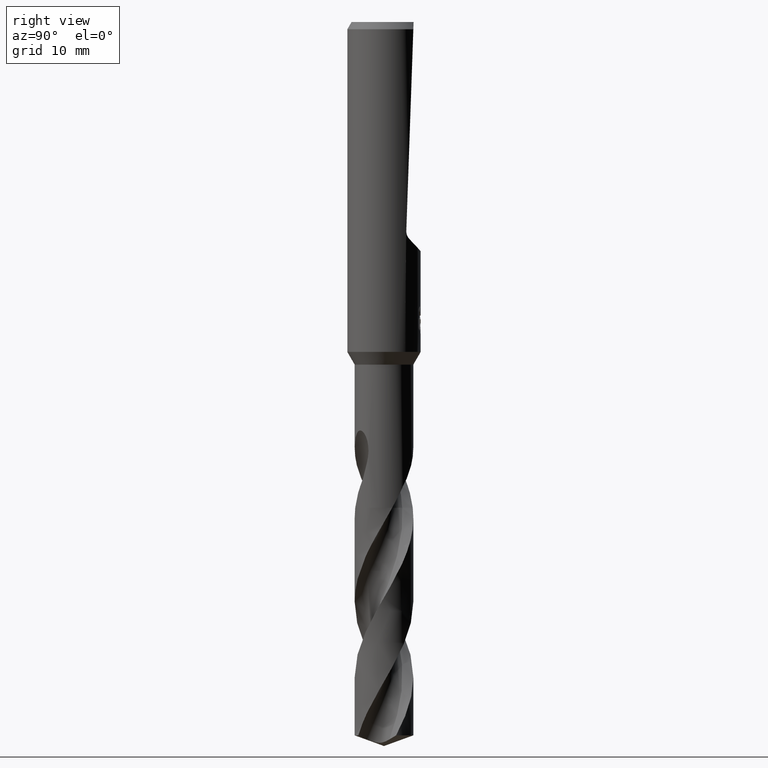
[diagram: clean part render]
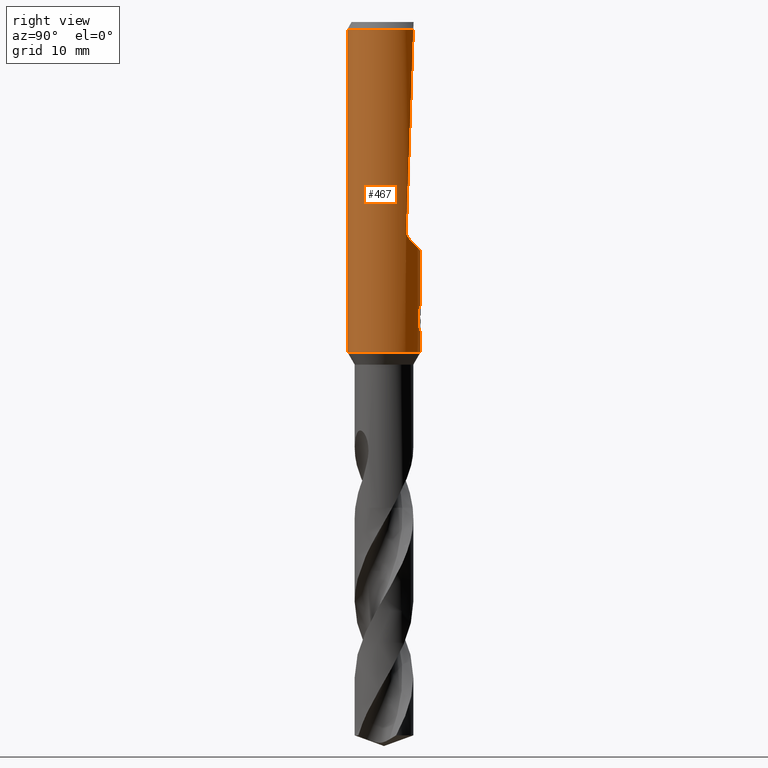
[diagram: same view with one face highlighted and labeled with its STEP entity id]
A machine part, right view. The second image highlights one B-rep face of the part: STEP entity #467.
In plain terms, the highlighted cylindrical surface (partial cylindrical patch) has radius 4 mm, axis along (-0, -0, 1).
Its self-contained STEP definition (entity closure, byte-faithful):
#317=VERTEX_POINT('',#880);
#335=VERTEX_POINT('',#899);
#357=EDGE_CURVE('',#729,#805,#924,.T.);
#365=EDGE_CURVE('',#445,#809,#934,.T.);
#367=EDGE_CURVE('',#719,#809,#936,.T.);
#369=EDGE_CURVE('',#747,#535,#938,.T.);
#383=EDGE_CURVE('',#317,#719,#955,.T.);
#397=EDGE_CURVE('',#409,#729,#970,.T.);
#399=EDGE_CURVE('',#747,#577,#972,.T.);
#409=VERTEX_POINT('',#983);
#445=VERTEX_POINT('',#1021);
#467=ADVANCED_FACE('',(#1045),#1046,.T.);
#473=EDGE_CURVE('',#589,#535,#1052,.T.);
#493=VERTEX_POINT('',#1074);
#501=EDGE_CURVE('',#679,#445,#1083,.T.);
#535=VERTEX_POINT('',#1120);
#565=EDGE_CURVE('',#577,#317,#1152,.T.);
#577=VERTEX_POINT('',#1165);
#581=VERTEX_POINT('',#1169);
#589=VERTEX_POINT('',#1178);
#615=EDGE_CURVE('',#805,#581,#1206,.T.);
#643=EDGE_CURVE('',#581,#335,#1237,.T.);
#657=EDGE_CURVE('',#493,#679,#1252,.T.);
#679=VERTEX_POINT('',#1275);
#719=VERTEX_POINT('',#1320);
#729=VERTEX_POINT('',#1330);
#747=VERTEX_POINT('',#1349);
#773=EDGE_CURVE('',#493,#409,#1379,.T.);
#779=EDGE_CURVE('',#335,#589,#1385,.T.);
#805=VERTEX_POINT('',#1416);
#809=VERTEX_POINT('',#1421);
#880=CARTESIAN_POINT('',(3.17557583065469,2.43222493691719,-22.8044492009967));
#899=CARTESIAN_POINT('',(1.33721006514658,3.76986329217263,-31.5150484364821));
#924=LINE('',#2515,#2516);
#934=LINE('',#2980,#2981);
#936=CIRCLE('',#2984,4.0);
#938=LINE('',#2987,#2988);
#955=ELLIPSE('',#3223,114.614833391376,4.0);
#970=ELLIPSE('',#3245,12.1919782934791,4.0);
#972=ELLIPSE('',#3248,5.8651167425585,4.0);
#983=CARTESIAN_POINT('',(0.29010312703583,3.98946615171554,-33.9998328990228));
#1021=CARTESIAN_POINT('',(4.89842541528951E-016,-4.0,-36.0));
#1045=FACE_OUTER_BOUND('',#3623,.T.);
#1046=CYLINDRICAL_SURFACE('',#3624,4.0);
#1052=B_SPLINE_CURVE_WITH_KNOTS('',3,(#3689,#3690,#3691,#3692,#3693,#3694,#3695,#3696,#3697,#3698,#3699,#3700,#3701,#3702,#3703,#3704,#3705,#3706,#3707,#3708,#3709,#3710,#3711,#3712,#3713,#3714,#3715),.UNSPECIFIED.,.F.,.F.,(4,2,3,2,2,2,2,2,2,2,2,2,4),(-0.543018145553855,-0.271509072776928,0.0,0.271509072776927,0.543018145553855,0.815414280910791,1.08781041626773,1.35870467547365,1.62959893467958,1.90093601549038,2.17227309630118,2.44361017711198,2.71494725792278),.UNSPECIFIED.);
#1074=CARTESIAN_POINT('',(-6.37761657961682E-016,4.0,-34.0310253601033));
#1083=CIRCLE('',#3798,4.0);
#1120=CARTESIAN_POINT('',(0.0,4.0,-32.0232688117743));
#1152=B_SPLINE_CURVE_WITH_KNOTS('',3,(#4543,#4544,#4545,#4546,#4547,#4548,#4549,#4550,#4551,#4552,#4553,#4554),.UNSPECIFIED.,.F.,.F.,(4,2,2,2,2,4),(11.3584858949333,11.6841057456814,12.0097255964295,12.2731801338981,12.5366346713666,12.8000892088352),.UNSPECIFIED.);
#1165=CARTESIAN_POINT('',(2.90106925914968,2.7538694873971,-23.6647266291147));
#1169=CARTESIAN_POINT('',(1.33721006514658,3.76986329217263,-33.2901657003257));
#1178=CARTESIAN_POINT('',(0.799431726384364,3.91929954390451,-31.000000276873));
#1206=B_SPLINE_CURVE_WITH_KNOTS('',3,(#4791,#4792,#4793,#4794,#4795,#4796,#4797,#4798,#4799,#4800),.UNSPECIFIED.,.F.,.F.,(4,2,2,2,4),(8.07922159159579,8.38940045176896,8.69957931194214,9.01038857642139,9.32119784090064),.UNSPECIFIED.);
#1237=LINE('',#5105,#5106);
#1252=LINE('',#5230,#5231);
#1275=CARTESIAN_POINT('',(0.0,4.0,-36.0));
#1320=CARTESIAN_POINT('',(2.39915011791252,3.20063723525806,-0.799999999999997));
#1330=CARTESIAN_POINT('',(0.873560781758957,3.90344611344549,-32.3198931596091));
#1349=CARTESIAN_POINT('',(-4.89842541528951E-016,4.0,-25.0010379994371));
#1379=B_SPLINE_CURVE_WITH_KNOTS('',3,(#6366,#6367,#6368,#6369,#6370,#6371,#6372,#6373,#6374,#6375,#6376,#6377,#6378,#6379,#6380,#6381),.UNSPECIFIED.,.F.,.F.,(4,2,2,2,2,2,2,4),(5.59330412183837,6.21519943861119,6.52611580040833,6.83703216220547,7.14794852400261,7.45886488579976,7.76904377517712,8.07922266455448),.UNSPECIFIED.);
#1385=B_SPLINE_CURVE_WITH_KNOTS('',3,(#6458,#6459,#6460,#6461,#6462,#6463,#6464,#6465,#6466,#6467),.UNSPECIFIED.,.F.,.F.,(4,2,2,2,4),(0.621618550720989,0.932427826081483,1.24323710144198,1.55341597198189,1.8635948425218),.UNSPECIFIED.);
#1416=CARTESIAN_POINT('',(0.873560781758956,3.90344611344549,-33.7587351791531));
#1421=CARTESIAN_POINT('',(4.89842541528951E-016,-4.0,-0.799999999999997));
#2515=CARTESIAN_POINT('',(0.873560781758957,3.90344611344549,-33.0393141693811));
#2516=VECTOR('',#7598,1.0);
#2980=CARTESIAN_POINT('',(4.89842541528951E-016,-4.0,-18.4));
#2981=VECTOR('',#7615,1.0);
#2984=AXIS2_PLACEMENT_3D('',#7616,#7617,#7618);
#2987=CARTESIAN_POINT('',(-4.89842541528951E-016,4.0,-18.4));
#2988=VECTOR('',#7619,1.0);
#3223=AXIS2_PLACEMENT_3D('',#7649,#7650,#7651);
#3245=AXIS2_PLACEMENT_3D('',#7679,#7680,#7681);
#3248=AXIS2_PLACEMENT_3D('',#7682,#7683,#7684);
#3623=EDGE_LOOP('',(#7735,#7736,#7737,#7738,#7739,#7740,#7741,#7742,#7743,#7744,#7745,#7746,#7747,#7748,#7749));
#3624=AXIS2_PLACEMENT_3D('',#7750,#7751,#7752);
#3689=CARTESIAN_POINT('',(0.665279195004375,3.9442874632428,-30.8137529884524));
#3690=CARTESIAN_POINT('',(0.72877088492158,3.9335783806135,-30.8773526603125));
#3691=CARTESIAN_POINT('',(0.783944488018489,3.92260552826083,-30.957920893425));
#3692=CARTESIAN_POINT('',(0.857267073993339,3.90723639918054,-31.134802544027));
#3693=CARTESIAN_POINT('',(0.875400981188567,3.90303383563787,-31.2311389883278));
#3694=CARTESIAN_POINT('',(0.875400981188567,3.90303383563787,-31.3216420125868));
#3695=CARTESIAN_POINT('',(0.875400981188567,3.90303383563787,-31.4121450368458));
#3696=CARTESIAN_POINT('',(0.857267073993339,3.90723639918054,-31.5084814811466));
#3697=CARTESIAN_POINT('',(0.783944488018488,3.92260552826083,-31.6853631317485));
#3698=CARTESIAN_POINT('',(0.728770884921581,3.9335783806135,-31.765931364861));
#3699=CARTESIAN_POINT('',(0.601580067811904,3.95503153411898,-31.8933384986505));
#3700=CARTESIAN_POINT('',(0.520902117238449,3.96693827151805,-31.9487071231089));
#3701=CARTESIAN_POINT('',(0.343752086871948,3.98619778335453,-32.0223037477669));
#3702=CARTESIAN_POINT('',(0.247255556938652,3.99338316413851,-32.0405166027747));
#3703=CARTESIAN_POINT('',(0.0662974670001867,4.00046977119903,-32.0405166027747));
#3704=CARTESIAN_POINT('',(-0.0299674229107091,4.00086780861984,-32.0224830783564));
#3705=CARTESIAN_POINT('',(-0.206991592502204,3.99562207288533,-31.9491870835923));
#3706=CARTESIAN_POINT('',(-0.287758268875903,3.99014940483369,-31.8939303320089));
#3707=CARTESIAN_POINT('',(-0.415384305359873,3.97889009382894,-31.7664425414649));
#3708=CARTESIAN_POINT('',(-0.470753835570468,3.9723749730993,-31.6856442592887));
#3709=CARTESIAN_POINT('',(-0.544239101864661,3.96297563900076,-31.5084730190186));
#3710=CARTESIAN_POINT('',(-0.562348199187247,3.96027328638705,-31.4120877061904));
#3711=CARTESIAN_POINT('',(-0.562348199187247,3.96027328638705,-31.2311963189832));
#3712=CARTESIAN_POINT('',(-0.544239101864661,3.96297563900076,-31.134811006155));
#3713=CARTESIAN_POINT('',(-0.470753835570468,3.9723749730993,-30.9576397658849));
#3714=CARTESIAN_POINT('',(-0.415384305359873,3.97889009382894,-30.8768414837086));
#3715=CARTESIAN_POINT('',(-0.351519173230209,3.98452434687649,-30.8130455309993));
#3798=AXIS2_PLACEMENT_3D('',#7800,#7801,#7802);
#4543=CARTESIAN_POINT('',(2.72825811350288,2.92516797228906,-23.8164335616677));
#4544=CARTESIAN_POINT('',(2.79934898450475,2.85886263617018,-23.7681571568462));
#4545=CARTESIAN_POINT('',(2.87037562163102,2.78727750482259,-23.7050263576755));
#4546=CARTESIAN_POINT('',(2.99188729278926,2.65642284716352,-23.5529400608025));
#4547=CARTESIAN_POINT('',(3.04244445655147,2.59747996728043,-23.4637614123037));
#4548=CARTESIAN_POINT('',(3.10947264435204,2.51662199005865,-23.2978526284994));
#4549=CARTESIAN_POINT('',(3.13500705494615,2.48444398927719,-23.2110167610061));
#4550=CARTESIAN_POINT('',(3.16830826056413,2.44183412236597,-23.0291690242009));
#4551=CARTESIAN_POINT('',(3.17613558772012,2.4314939293401,-22.9341467761959));
#4552=CARTESIAN_POINT('',(3.17613558772012,2.4314939293401,-22.7585104178835));
#4553=CARTESIAN_POINT('',(3.16830826056413,2.44183412236597,-22.6634881698785));
#4554=CARTESIAN_POINT('',(3.1516576577551,2.46313905582159,-22.5725643014759));
#4791=CARTESIAN_POINT('',(0.597825566619951,3.95507327263295,-33.9060822529338));
#4792=CARTESIAN_POINT('',(0.69796736707036,3.93993642812991,-33.8643738039892));
#4793=CARTESIAN_POINT('',(0.793686097648071,3.92151313976681,-33.8126197884223));
#4794=CARTESIAN_POINT('',(0.970367443122637,3.8815705522933,-33.6935130308195));
#4795=CARTESIAN_POINT('',(1.05133192391794,3.86008660197544,-33.6261512051772));
#4796=CARTESIAN_POINT('',(1.19470604884202,3.81814974811935,-33.4828594684698));
#4797=CARTESIAN_POINT('',(1.26216864117972,3.79617175021539,-33.401827240791));
#4798=CARTESIAN_POINT('',(1.38139933735972,3.75442745400946,-33.2250929426288));
#4799=CARTESIAN_POINT('',(1.43317984807825,3.73470372457547,-33.1293891903286));
#4800=CARTESIAN_POINT('',(1.47492142700079,3.7181456109429,-33.0292536952238));
#5105=CARTESIAN_POINT('',(1.33721006514658,3.76986329217263,-32.4026070684039));
#5106=VECTOR('',#7943,1.0);
#5230=CARTESIAN_POINT('',(-4.89842541528951E-016,4.0,-18.4));
#5231=VECTOR('',#7952,1.0);
#6366=CARTESIAN_POINT('',(-1.53169074080201,3.69512157777541,-33.0291469804961));
#6367=CARTESIAN_POINT('',(-1.44828662161398,3.72969396308271,-33.2292685117474));
#6368=CARTESIAN_POINT('',(-1.3235119204923,3.77766697431007,-33.4106519059977));
#6369=CARTESIAN_POINT('',(-1.10876972720289,3.84398770228913,-33.6255223555534));
#6370=CARTESIAN_POINT('',(-1.02784628500841,3.86675406900514,-33.6929304922165));
#6371=CARTESIAN_POINT('',(-0.851215741256186,3.9094356085587,-33.8121513963803));
#6372=CARTESIAN_POINT('',(-0.755506440008018,3.92931563110609,-33.8639734861066));
#6373=CARTESIAN_POINT('',(-0.55516132520436,3.96258844897707,-33.9475385932463));
#6374=CARTESIAN_POINT('',(-0.450345578096092,3.97598591776774,-33.9793474763458));
#6375=CARTESIAN_POINT('',(-0.238765831475676,3.99427916347003,-34.0212208804589));
#6376=CARTESIAN_POINT('',(-0.131998351317953,3.99916459194608,-34.0312723335086));
#6377=CARTESIAN_POINT('',(0.0750281946656646,4.00063255933723,-34.0312723335086));
#6378=CARTESIAN_POINT('',(0.181611397509719,3.99727906083033,-34.0212676362976));
#6379=CARTESIAN_POINT('',(0.392937729655654,3.98206259750675,-33.9795209106323));
#6380=CARTESIAN_POINT('',(0.497684032548134,3.97021008398904,-33.9477911393989));
#6381=CARTESIAN_POINT('',(0.597825841435798,3.9550732310934,-33.9060826866649));
#6458=CARTESIAN_POINT('',(1.47492143493287,3.71814560779639,-31.7759604553563));
#6459=CARTESIAN_POINT('',(1.43317985453682,3.73470372211652,-31.6758249567768));
#6460=CARTESIAN_POINT('',(1.38139934199221,3.7544274523428,-31.5801212011595));
#6461=CARTESIAN_POINT('',(1.26216864159784,3.79617175011376,-31.4033868968692));
#6462=CARTESIAN_POINT('',(1.1947060468711,3.8181497487877,-31.3223546663791));
#6463=CARTESIAN_POINT('',(1.0513319169546,3.86008660392055,-31.1790629248092));
#6464=CARTESIAN_POINT('',(0.970367433401024,3.88157055479408,-31.1117010969221));
#6465=CARTESIAN_POINT('',(0.793686081906958,3.92151314302242,-30.9925943353462));
#6466=CARTESIAN_POINT('',(0.697967348067752,3.93993643158254,-30.9408403180509));
#6467=CARTESIAN_POINT('',(0.597825544213158,3.95507327601983,-30.8991318677171));
#7598=DIRECTION('',(0.0,0.0,-1.0));
#7615=DIRECTION('',(-0.0,-0.0,1.0));
#7616=CARTESIAN_POINT('',(0.0,0.0,-0.799999999999997));
#7617=DIRECTION('',(0.0,0.0,-1.0));
#7618=DIRECTION('',(0.0,1.0,0.0));
#7619=DIRECTION('',(0.0,0.0,-1.0));
#7649=CARTESIAN_POINT('',(0.0,0.0,-92.4542585355811));
#7650=DIRECTION('',(0.0,-0.999390827019096,0.0348994967025007));
#7651=DIRECTION('',(0.0,0.0348994967025007,0.999390827019096));
#7679=CARTESIAN_POINT('',(0.0,0.0,-34.8351219173269));
#7680=DIRECTION('',(0.944648353914092,0.0,-0.328084573619969));
#7681=DIRECTION('',(0.328084573619968,-0.0,0.944648353914092));
#7682=CARTESIAN_POINT('',(0.0,0.0,-20.7115631593383));
#7683=DIRECTION('',(0.0,-0.73135370161917,-0.681998360062499));
#7684=DIRECTION('',(0.0,0.681998360062499,-0.73135370161917));
#7735=ORIENTED_EDGE('',*,*,#369,.F.);
#7736=ORIENTED_EDGE('',*,*,#399,.T.);
#7737=ORIENTED_EDGE('',*,*,#565,.T.);
#7738=ORIENTED_EDGE('',*,*,#383,.T.);
#7739=ORIENTED_EDGE('',*,*,#367,.T.);
#7740=ORIENTED_EDGE('',*,*,#365,.F.);
#7741=ORIENTED_EDGE('',*,*,#501,.F.);
#7742=ORIENTED_EDGE('',*,*,#657,.F.);
#7743=ORIENTED_EDGE('',*,*,#773,.T.);
#7744=ORIENTED_EDGE('',*,*,#397,.T.);
#7745=ORIENTED_EDGE('',*,*,#357,.T.);
#7746=ORIENTED_EDGE('',*,*,#615,.T.);
#7747=ORIENTED_EDGE('',*,*,#643,.T.);
#7748=ORIENTED_EDGE('',*,*,#779,.T.);
#7749=ORIENTED_EDGE('',*,*,#473,.T.);
#7750=CARTESIAN_POINT('',(0.0,0.0,-18.4));
#7751=DIRECTION('',(-0.0,-0.0,1.0));
#7752=DIRECTION('',(0.0,1.0,0.0));
#7800=CARTESIAN_POINT('',(0.0,0.0,-36.0));
#7801=DIRECTION('',(0.0,0.0,-1.0));
#7802=DIRECTION('',(0.0,1.0,0.0));
#7943=DIRECTION('',(-0.0,-0.0,1.0));
#7952=DIRECTION('',(0.0,0.0,-1.0));